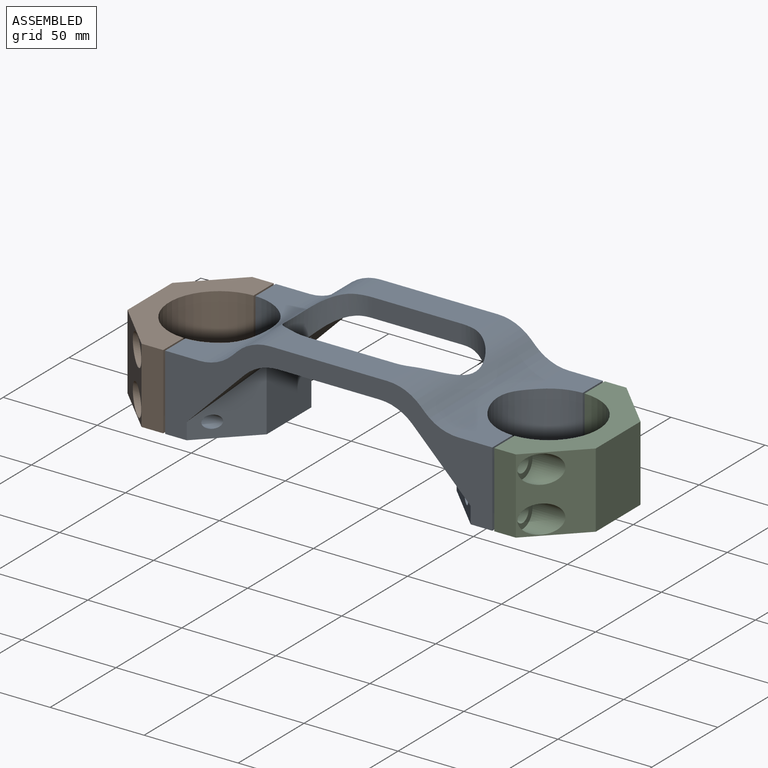
[diagram: assembled view]
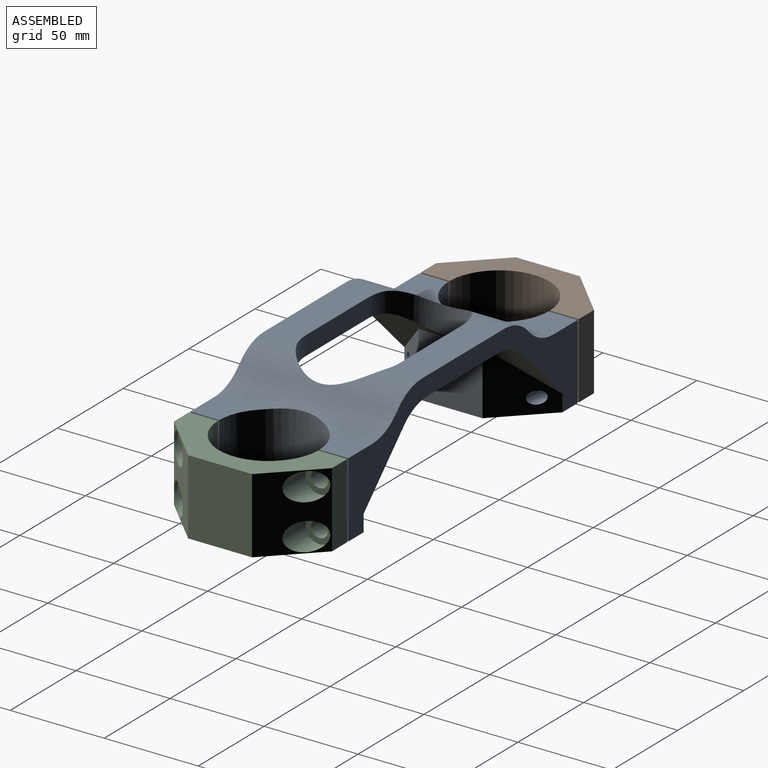
[diagram: assembled view, second angle]
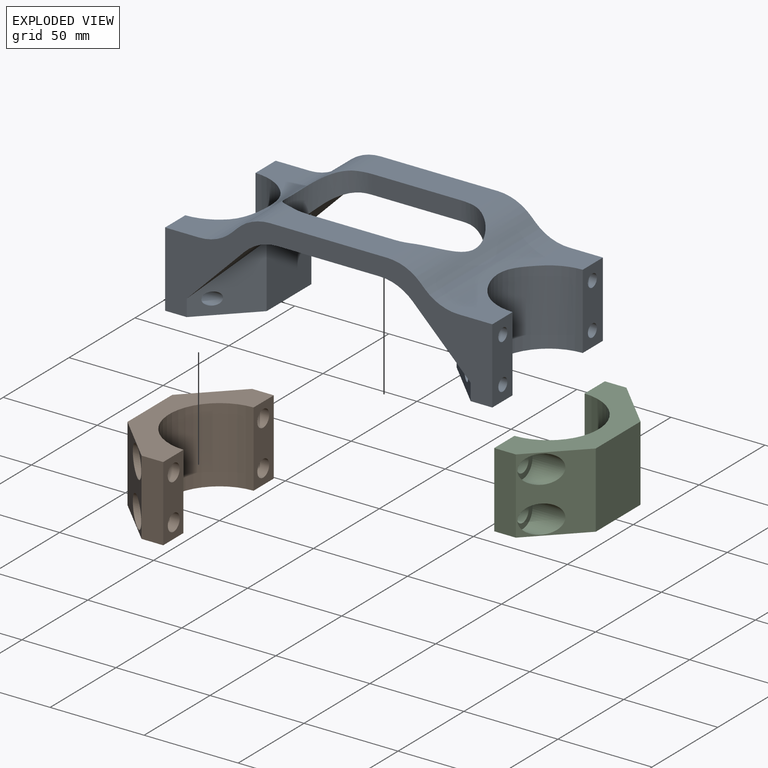
[diagram: exploded view]
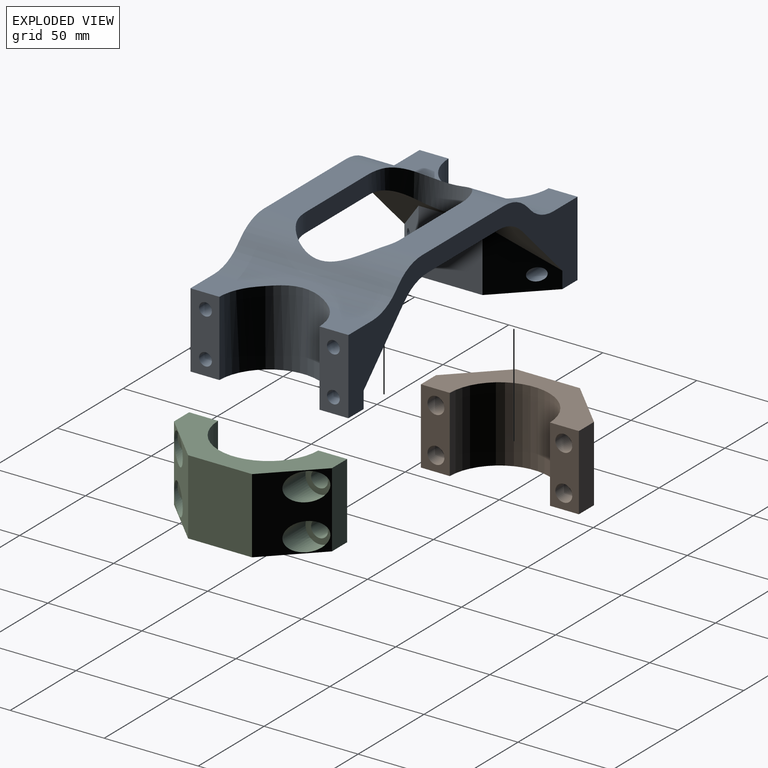
[diagram: exploded view, second angle]
ASSEMBLY  parts=3 mates=2
PART A: 52 faces, bbox 175.4x85.4x58.4 mm
  f0: plane 84x36.5mm, normal (0,0,-1), area 1352mm2, adj f11,f12,f13,f26,f27,f28,f38,f39
  f1: cylinder r=25mm len=28.72mm, axis (0,1,0), area 421mm2, adj f2,f11,f14,f32
  f2: plane 54.01x17.25mm, normal (0,0,-1), area 918.7mm2, adj f1,f4,f11,f29,f30,f32
  f3: cylinder r=25mm len=28.72mm, axis (0,1,0), area 421mm2, adj f12,f16,f17,f30
  f4: cylinder r=25mm len=28.72mm, axis (0,1,0), area 421mm2, adj f2,f11,f17,f30
  f5: plane 22.96x18.14mm, normal (0,0,1), area 322.7mm2, adj f6,f11,f33,f34
  f6: cylinder r=25mm len=84mm, axis (0,1,0), area 1436.5mm2, adj f5,f11,f12,f20,f21,f33
  f7: cylinder r=25mm len=84mm, axis (0,1,0), area 1000mm2, adj f8,f11,f12,f21,f22,f30
  f8: plane 62.29x18.2mm, normal (0,0,1), area 1065mm2, adj f7,f11,f23,f29,f30,f32
  f9: plane 22.96x18.14mm, normal (0,0,1), area 322.7mm2, adj f11,f25,f26,f27
  f10: plane 22.96x18.14mm, normal (0,0,1), area 322.7mm2, adj f12,f25,f26,f28
  f11: plane 174x57mm, normal (0,-1,0), area 3044.7mm2, adj f0,f1,f2,f4,f5,f6,f7,f8
  f12: plane 174x57mm, normal (0,1,0), area 3044.7mm2, adj f0,f3,f6,f7,f10,f14,f15,f16
  f13: plane 34x33.86mm, normal (1,0,0), area 1151.2mm2, adj f0,f14,f38,f39
  f14: plane 84x30.82mm, normal (0.71,0,-0.71), area 1478mm2, adj f1,f11,f12,f13,f15,f32,f38,f39
  f15: cylinder r=25mm len=28.72mm, axis (0,1,0), area 421mm2, adj f12,f14,f16,f32
  f16: plane 54.01x17.25mm, normal (0,0,-1), area 918.7mm2, adj f3,f12,f15,f30,f31,f32
  f17: plane 84x30.82mm, normal (-0.71,0,-0.71), area 1478mm2, adj f3,f4,f11,f12,f18,f30,f36,f37
  f18: plane 34x33.86mm, normal (-1,0,0), area 1151.2mm2, adj f17,f19,f36,f37
  f19: plane 84x36.5mm, normal (0,0,-1), area 1352mm2, adj f11,f12,f18,f33,f34,f35,f36,f37
  f20: plane 22.96x18.14mm, normal (0,0,1), area 322.7mm2, adj f6,f12,f33,f35
  f21: plane 84x2.36mm, normal (0.71,0,0.71), area 279.8mm2, adj f6,f7,f11,f12
  f22: plane 62.29x18.2mm, normal (0,0,1), area 1065mm2, adj f7,f12,f23,f30,f31,f32
  f23: cylinder r=25mm len=84mm, axis (0,1,0), area 999.9mm2, adj f8,f11,f12,f22,f24,f32
  f24: plane 84x2.36mm, normal (-0.71,0,0.71), area 279.8mm2, adj f11,f12,f23,f25
  f25: cylinder r=25mm len=84mm, axis (0,1,0), area 1436.5mm2, adj f9,f10,f11,f12,f24,f26
  f26: cylinder r=26.65mm len=53.29mm, axis (0,0,1), area 3338.1mm2, adj f0,f9,f10,f25,f27,f28
  f27: plane 40x15.35mm, normal (-1,0,0), area 541.6mm2, adj f0,f9,f11,f26,f40,f45
  f28: plane 40x15.35mm, normal (-1,0,0), area 541.6mm2, adj f0,f10,f12,f26,f41,f43
  f29: plane 47x10mm, normal (0,1,0), area 470mm2, adj f2,f8,f30,f32
  f30: cylinder r=25mm len=50mm, axis (0,0,1), area 959.8mm2, adj f2,f3,f4,f7,f8,f16,f17,f22
  f31: plane 47x10mm, normal (0,-1,0), area 470mm2, adj f16,f22,f30,f32
  f32: cylinder r=25mm len=50mm, axis (0,0,1), area 959.8mm2, adj f1,f2,f8,f14,f15,f16,f22,f23
  f33: cylinder r=26.65mm len=53.29mm, axis (0,0,1), area 3338.1mm2, adj f5,f6,f19,f20,f34,f35
  f34: plane 40x15.35mm, normal (1,0,0), area 541.6mm2, adj f5,f11,f19,f33,f46,f51
  f35: plane 40x15.35mm, normal (1,0,0), area 541.6mm2, adj f12,f19,f20,f33,f47,f49
  f36: plane 35.29x26.43mm, normal (-0.71,0.71,0), area 703.8mm2, adj f12,f17,f18,f19,f47
  f37: plane 35.29x26.43mm, normal (-0.71,-0.71,0), area 703.8mm2, adj f11,f17,f18,f19,f46
  f38: plane 35.29x26.43mm, normal (0.71,0.71,0), area 703.8mm2, adj f0,f12,f13,f14,f41
  f39: plane 35.29x26.43mm, normal (0.71,-0.71,0), area 703.8mm2, adj f0,f11,f13,f14,f40
  f40: cylinder r=3.4mm len=22.92mm, axis (-1,0,0), area 419.1mm2, adj f27,f39
  f41: cylinder r=3.4mm len=22.92mm, axis (-1,0,0), area 419.1mm2, adj f28,f38
  f42: cone r=0mm half-angle=59deg, axis (-1,0,0), area 42.4mm2, adj f43
  f43: cylinder r=3.4mm len=26.25mm, axis (-1,0,0), area 560.8mm2, adj f28,f42
  f44: cone r=0mm half-angle=59deg, axis (-1,0,0), area 42.4mm2, adj f45
  f45: cylinder r=3.4mm len=26.25mm, axis (-1,0,0), area 560.8mm2, adj f27,f44
  f46: cylinder r=3.4mm len=22.92mm, axis (1,0,0), area 419.1mm2, adj f34,f37
  f47: cylinder r=3.4mm len=22.92mm, axis (1,0,0), area 419.1mm2, adj f35,f36
  f48: cone r=0mm half-angle=59deg, axis (1,0,0), area 42.4mm2, adj f49
  f49: cylinder r=3.4mm len=26.25mm, axis (1,0,0), area 560.8mm2, adj f35,f48
  f50: cone r=0mm half-angle=59deg, axis (1,0,0), area 42.4mm2, adj f51
  f51: cylinder r=3.4mm len=26.25mm, axis (1,0,0), area 560.8mm2, adj f34,f50
PART B: 22 faces, bbox 39.7x87.2x43.2 mm
  f0: plane 84x36.5mm, normal (0,0,1), area 1352mm2, adj f2,f3,f4,f5,f6,f7,f8,f9
  f1: plane 84x36.5mm, normal (0,0,-1), area 1352mm2, adj f2,f3,f4,f5,f6,f7,f8,f9
  f2: plane 40x11.5mm, normal (0,1,0), area 460mm2, adj f0,f1,f5,f9
  f3: plane 40x11.5mm, normal (0,-1,0), area 460mm2, adj f0,f1,f6,f8
  f4: plane 40x34mm, normal (-1,0,0), area 1360mm2, adj f0,f1,f5,f6
  f5: plane 43.15x28.15mm, normal (-0.71,0.71,0), area 914.4mm2, adj f0,f1,f2,f4,f12,f15
  f6: plane 43.15x28.15mm, normal (-0.71,-0.71,0), area 914.4mm2, adj f0,f1,f3,f4,f16,f19
  f7: cylinder r=26.65mm len=53.29mm, axis (0,0,1), area 3308.9mm2, adj f0,f1,f8,f9
  f8: plane 40x15.35mm, normal (1,0,0), area 487mm2, adj f0,f1,f3,f7,f17,f20
  f9: plane 40x15.35mm, normal (1,0,0), area 487mm2, adj f0,f1,f2,f7,f10,f13
  f10: cylinder r=4.5mm len=9.5mm, axis (-1,0,0), area 268.6mm2, adj f9,f11
  f11: plane 15x15mm, normal (-1,0,0), area 113.1mm2, adj f10,f12
  f12: cylinder r=7.5mm len=17.5mm, axis (-1,0,0), area 459.2mm2, adj f5,f11
  f13: cylinder r=4.5mm len=9.5mm, axis (-1,0,0), area 268.6mm2, adj f9,f14
  f14: plane 15x15mm, normal (-1,0,0), area 113.1mm2, adj f13,f15
  f15: cylinder r=7.5mm len=17.5mm, axis (-1,0,0), area 459.2mm2, adj f5,f14
  f16: cylinder r=7.5mm len=17.5mm, axis (-1,0,0), area 459.2mm2, adj f6,f18
  f17: cylinder r=4.5mm len=9.5mm, axis (-1,0,0), area 268.6mm2, adj f8,f18
  f18: plane 15x15mm, normal (-1,0,0), area 113.1mm2, adj f16,f17
  f19: cylinder r=7.5mm len=17.5mm, axis (-1,0,0), area 459.2mm2, adj f6,f21
  f20: cylinder r=4.5mm len=9.5mm, axis (-1,0,0), area 268.6mm2, adj f8,f21
  f21: plane 15x15mm, normal (-1,0,0), area 113.1mm2, adj f19,f20
PART C: same geometry as B
PLACE A t=(87.5,0,19.19)mm
PLACE B rot(axis=(1,0,0),180deg) t=(87.5,0,-20.81)mm
PLACE C rot(axis=(0,0,1),180deg) t=(87.5,0,19.19)mm
MATE fastened B.f7 <-> A.f26  axis (0,0,-1) through (0,0,-20.81)mm
MATE fastened C.f7 <-> A.f33  axis (0,0,1) through (175,0,-20.81)mm
